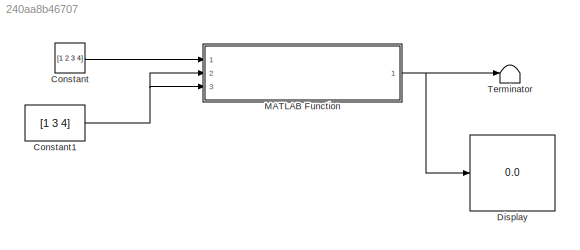
MODEL slx_240aa8b46707
KIND model
CONFIG AbsTol = auto
CONFIG EnableMultiTasking = off
CONFIG FixedStep = 1
CONFIG MaxStep = auto
CONFIG MinStep = auto
CONFIG RelTol = 1e-3
CONFIG SampleTimeConstraint = Unconstrained
CONFIG Solver = FixedStepDiscrete
CONFIG SolverName = FixedStepDiscrete
CONFIG StartTime = 0.0
CONFIG StopTime = 1
BLOCK [Constant] Constant
  OutDataTypeStr = double
  Value = [1 2 3 4]
BLOCK [Constant] Constant1
  OutDataTypeStr = double
  Value = [1 3 4]
BLOCK [Display] Display
  Decimation = 1
  Ports = [1]
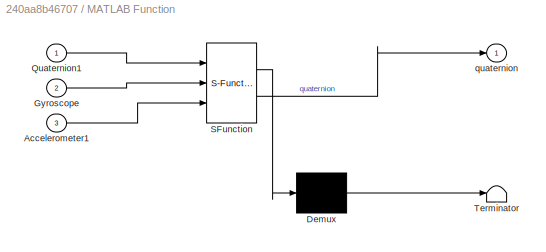
BLOCK [SubSystem] MATLAB Function
  ErrorFcn = Stateflow.Translate.translate
  PermitHierarchicalResolution = ExplicitOnly
  Ports = [3, 1]
  RequestExecContextInheritance = off
  SFBlockType = MATLAB Function
  TreatAsAtomicUnit = on
BLOCK [Demux] MATLAB Function/ Demux 
  Outputs = 1
  Ports = [1, 1]
BLOCK [S-Function] MATLAB Function/ SFunction 
  EnableBusSupport = on
  FunctionName = sf_sfun
  PortCounts = [3 2]
  Ports = [3, 2]
  SFcnIsStateOwnerBlock = off
  SFunctionDeploymentMode = off
  Tag = Stateflow S-Function 2
BLOCK [Terminator] MATLAB Function/ Terminator 
BLOCK [Inport] MATLAB Function/Accelerometer1
  Port = 3
BLOCK [Inport] MATLAB Function/Gyroscope
  Port = 2
BLOCK [Inport] MATLAB Function/Quaternion1
BLOCK [Outport] MATLAB Function/quaternion
BLOCK [Terminator] Terminator
NET Constant1:1 -> MATLAB Function:2, MATLAB Function:3
LINE Constant:1 -> MATLAB Function:1
NET MATLAB Function:1 -> Display:1, Terminator:1
note: NET lines group one-source signal fan-out (src -> all destinations, sorted); 1:1 wires keep LINE
CHART MATLAB Function states=1 transitions=1
  STATE_LABEL 'eML_blk_kernel()'
  STATE_LABEL 'SCRIPT:\n%function [residual, xhatOut] = EXTKALMAN(meas, deltat)\nfunction quaternion  = UpdateIMU(Quaternion1, Gyroscope, Accelerometer1)\n\n% Initialization\n% persistent quaternion\n% if isempty(quaternion)\n%     quaternion = [1 0 0 0];     % output quaternion describing the Earth relative to the sensor\n% end\n\nSamplePeriod = 1/200;       %5ms\nBeta = 0.1;               \t% algorithm gain\nq = [0 0 0 0];...<+1920ch>'
CHART  states=0 transitions=0
